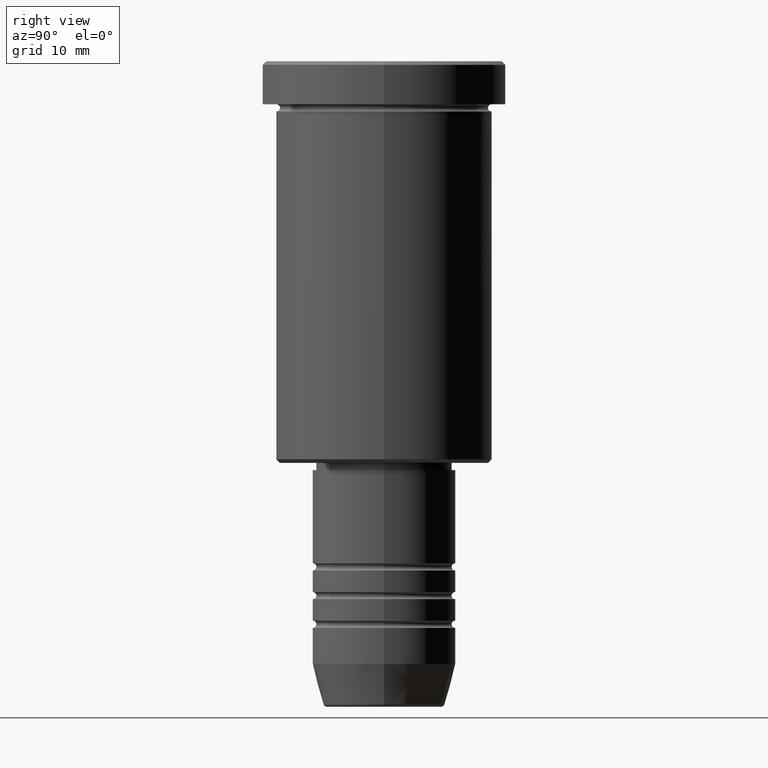
[diagram: clean part render]
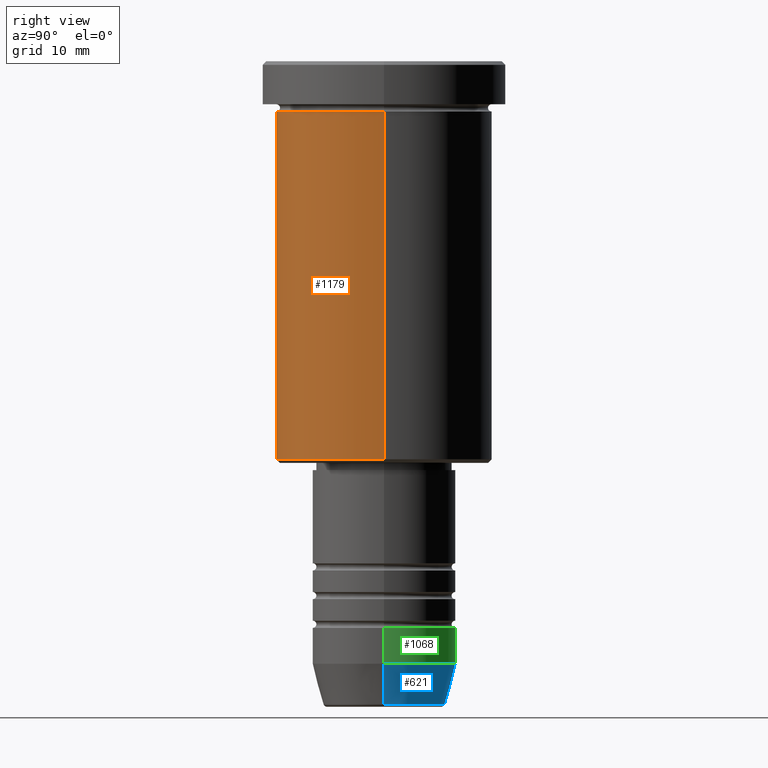
[diagram: same view with three faces highlighted in distinct colors, each labeled with its STEP entity id]
A machine part, right view with three faces highlighted in distinct colors.
Their STEP definitions:

[orange] entity #1179 — the highlighted cylindrical surface (partial cylindrical patch) has radius 15 mm, axis along (-0, -0, 1).
#30 = CYLINDRICAL_SURFACE ( 'NONE', #185, 15.00000000000000000 ) ;
#42 = DIRECTION ( 'NONE',  ( -0.000000000000000000, -0.000000000000000000, 1.000000000000000000 ) ) ;
#54 = ORIENTED_EDGE ( 'NONE', *, *, #250, .F. ) ;
#131 = FACE_OUTER_BOUND ( 'NONE', #576, .T. ) ;
#179 = DIRECTION ( 'NONE',  ( -0.000000000000000000, -0.000000000000000000, 1.000000000000000000 ) ) ;
#180 = EDGE_CURVE ( 'NONE', #697, #325, #645, .T. ) ;
#185 = AXIS2_PLACEMENT_3D ( 'NONE', #405, #315, #687 ) ;
#204 = DIRECTION ( 'NONE',  ( 1.000000000000000000, 0.000000000000000000, 0.000000000000000000 ) ) ;
#250 = EDGE_CURVE ( 'NONE', #1119, #457, #881, .T. ) ;
#255 = DIRECTION ( 'NONE',  ( -0.000000000000000000, -0.000000000000000000, 1.000000000000000000 ) ) ;
#283 = AXIS2_PLACEMENT_3D ( 'NONE', #304, #1022, #204 ) ;
#304 = CARTESIAN_POINT ( 'NONE',  ( 0.000000000000000000, 0.000000000000000000, -6.999999999999995559 ) ) ;
#315 = DIRECTION ( 'NONE',  ( -0.000000000000000000, -0.000000000000000000, 1.000000000000000000 ) ) ;
#319 = CIRCLE ( 'NONE', #977, 15.00000000000000000 ) ;
#325 = VERTEX_POINT ( 'NONE', #1155 ) ;
#327 = CARTESIAN_POINT ( 'NONE',  ( -15.00000000000000000, 1.836970198721029589E-15, 0.000000000000000000 ) ) ;
#330 = CARTESIAN_POINT ( 'NONE',  ( 0.000000000000000000, 0.000000000000000000, -55.49999999999997158 ) ) ;
#337 = EDGE_CURVE ( 'NONE', #1119, #697, #319, .T. ) ;
#382 = CIRCLE ( 'NONE', #283, 15.00000000000000000 ) ;
#405 = CARTESIAN_POINT ( 'NONE',  ( 0.000000000000000000, 0.000000000000000000, 0.000000000000000000 ) ) ;
#447 = CARTESIAN_POINT ( 'NONE',  ( 15.00000000000000000, 0.000000000000000000, 0.000000000000000000 ) ) ;
#454 = ORIENTED_EDGE ( 'NONE', *, *, #603, .F. ) ;
#457 = VERTEX_POINT ( 'NONE', #835 ) ;
#576 = EDGE_LOOP ( 'NONE', ( #54, #973, #918, #454 ) ) ;
#603 = EDGE_CURVE ( 'NONE', #457, #325, #382, .T. ) ;
#645 = LINE ( 'NONE', #447, #750 ) ;
#687 = DIRECTION ( 'NONE',  ( 1.000000000000000000, 0.000000000000000000, 0.000000000000000000 ) ) ;
#697 = VERTEX_POINT ( 'NONE', #875 ) ;
#750 = VECTOR ( 'NONE', #179, 1000.000000000000000 ) ;
#792 = CARTESIAN_POINT ( 'NONE',  ( -15.00000000000000000, 1.836970198721029589E-15, -55.49999999999997158 ) ) ;
#835 = CARTESIAN_POINT ( 'NONE',  ( -15.00000000000000000, 1.836970198721029589E-15, -6.999999999999995559 ) ) ;
#875 = CARTESIAN_POINT ( 'NONE',  ( 15.00000000000000000, 0.000000000000000000, -55.49999999999997158 ) ) ;
#878 = DIRECTION ( 'NONE',  ( -1.000000000000000000, 0.000000000000000000, 0.000000000000000000 ) ) ;
#881 = LINE ( 'NONE', #327, #925 ) ;
#918 = ORIENTED_EDGE ( 'NONE', *, *, #180, .T. ) ;
#925 = VECTOR ( 'NONE', #42, 1000.000000000000000 ) ;
#973 = ORIENTED_EDGE ( 'NONE', *, *, #337, .T. ) ;
#977 = AXIS2_PLACEMENT_3D ( 'NONE', #330, #255, #878 ) ;
#1022 = DIRECTION ( 'NONE',  ( -0.000000000000000000, -0.000000000000000000, 1.000000000000000000 ) ) ;
#1119 = VERTEX_POINT ( 'NONE', #792 ) ;
#1155 = CARTESIAN_POINT ( 'NONE',  ( 15.00000000000000000, 0.000000000000000000, -6.999999999999995559 ) ) ;
#1179 = ADVANCED_FACE ( 'NONE', ( #131 ), #30, .T. ) ;

[blue] entity #621 — the highlighted conical surface has half-angle 15 deg.
#14 = EDGE_CURVE ( 'NONE', #352, #1166, #414, .T. ) ;
#17 = CARTESIAN_POINT ( 'NONE',  ( 0.000000000000000000, 0.000000000000000000, -83.99999999999998579 ) ) ;
#21 = DIRECTION ( 'NONE',  ( -0.000000000000000000, -0.000000000000000000, 1.000000000000000000 ) ) ;
#37 = EDGE_LOOP ( 'NONE', ( #803, #57, #1086, #268 ) ) ;
#57 = ORIENTED_EDGE ( 'NONE', *, *, #829, .T. ) ;
#68 = CIRCLE ( 'NONE', #222, 8.491604264568312743 ) ;
#161 = CARTESIAN_POINT ( 'NONE',  ( -8.491604264568312743, 1.132284198685156781E-15, -89.62940952255125637 ) ) ;
#196 = EDGE_CURVE ( 'NONE', #240, #352, #432, .T. ) ;
#211 = DIRECTION ( 'NONE',  ( -0.000000000000000000, -0.000000000000000000, 1.000000000000000000 ) ) ;
#222 = AXIS2_PLACEMENT_3D ( 'NONE', #320, #235, #970 ) ;
#230 = CARTESIAN_POINT ( 'NONE',  ( 8.491604264568312743, 0.000000000000000000, -89.62940952255125637 ) ) ;
#233 = EDGE_CURVE ( 'NONE', #240, #820, #68, .T. ) ;
#235 = DIRECTION ( 'NONE',  ( -0.000000000000000000, -0.000000000000000000, 1.000000000000000000 ) ) ;
#240 = VERTEX_POINT ( 'NONE', #230 ) ;
#268 = ORIENTED_EDGE ( 'NONE', *, *, #196, .F. ) ;
#320 = CARTESIAN_POINT ( 'NONE',  ( 0.000000000000000000, 0.000000000000000000, -89.62940952255125637 ) ) ;
#352 = VERTEX_POINT ( 'NONE', #429 ) ;
#360 = DIRECTION ( 'NONE',  ( 0.2588190451025214056, 0.000000000000000000, 0.9659258262890680902 ) ) ;
#379 = VECTOR ( 'NONE', #360, 1000.000000000000000 ) ;
#399 = DIRECTION ( 'NONE',  ( 1.000000000000000000, 0.000000000000000000, 0.000000000000000000 ) ) ;
#414 = CIRCLE ( 'NONE', #572, 10.00000000000000178 ) ;
#429 = CARTESIAN_POINT ( 'NONE',  ( 10.00000000000000178, 0.000000000000000000, -83.99999999999998579 ) ) ;
#432 = LINE ( 'NONE', #730, #379 ) ;
#444 = LINE ( 'NONE', #832, #675 ) ;
#490 = DIRECTION ( 'NONE',  ( 1.000000000000000000, 0.000000000000000000, 0.000000000000000000 ) ) ;
#503 = CARTESIAN_POINT ( 'NONE',  ( -10.00000000000000178, 1.224646799147353454E-15, -83.99999999999998579 ) ) ;
#572 = AXIS2_PLACEMENT_3D ( 'NONE', #583, #211, #399 ) ;
#575 = AXIS2_PLACEMENT_3D ( 'NONE', #17, #21, #490 ) ;
#583 = CARTESIAN_POINT ( 'NONE',  ( 0.000000000000000000, 0.000000000000000000, -83.99999999999998579 ) ) ;
#587 = FACE_OUTER_BOUND ( 'NONE', #37, .T. ) ;
#621 = ADVANCED_FACE ( 'NONE', ( #587 ), #926, .T. ) ;
#675 = VECTOR ( 'NONE', #1065, 1000.000000000000000 ) ;
#730 = CARTESIAN_POINT ( 'NONE',  ( 10.00000000000000178, 0.000000000000000000, -83.99999999999998579 ) ) ;
#803 = ORIENTED_EDGE ( 'NONE', *, *, #233, .T. ) ;
#820 = VERTEX_POINT ( 'NONE', #161 ) ;
#829 = EDGE_CURVE ( 'NONE', #820, #1166, #444, .T. ) ;
#832 = CARTESIAN_POINT ( 'NONE',  ( -10.00000000000000178, 1.224646799147353454E-15, -83.99999999999998579 ) ) ;
#926 = CONICAL_SURFACE ( 'NONE', #575, 10.00000000000000178, 0.2617993877991501295 ) ;
#970 = DIRECTION ( 'NONE',  ( 1.000000000000000000, 0.000000000000000000, 0.000000000000000000 ) ) ;
#1065 = DIRECTION ( 'NONE',  ( -0.2588190451025214056, 3.169619151431772953E-17, 0.9659258262890680902 ) ) ;
#1086 = ORIENTED_EDGE ( 'NONE', *, *, #14, .F. ) ;
#1166 = VERTEX_POINT ( 'NONE', #503 ) ;

[green] entity #1068 — the highlighted cylindrical surface (partial cylindrical patch) has radius 10 mm, axis along (-0, -0, 1).
#14 = EDGE_CURVE ( 'NONE', #352, #1166, #414, .T. ) ;
#158 = ORIENTED_EDGE ( 'NONE', *, *, #653, .F. ) ;
#183 = CARTESIAN_POINT ( 'NONE',  ( -10.00000000000000000, 1.224646799147353256E-15, -78.99999999999998579 ) ) ;
#205 = DIRECTION ( 'NONE',  ( -0.000000000000000000, -0.000000000000000000, 1.000000000000000000 ) ) ;
#211 = DIRECTION ( 'NONE',  ( -0.000000000000000000, -0.000000000000000000, 1.000000000000000000 ) ) ;
#273 = CARTESIAN_POINT ( 'NONE',  ( 10.00000000000000000, 0.000000000000000000, -78.99999999999998579 ) ) ;
#295 = ORIENTED_EDGE ( 'NONE', *, *, #1156, .F. ) ;
#298 = CARTESIAN_POINT ( 'NONE',  ( 0.000000000000000000, 0.000000000000000000, 0.000000000000000000 ) ) ;
#307 = DIRECTION ( 'NONE',  ( -0.000000000000000000, -0.000000000000000000, 1.000000000000000000 ) ) ;
#318 = DIRECTION ( 'NONE',  ( -0.000000000000000000, -0.000000000000000000, 1.000000000000000000 ) ) ;
#352 = VERTEX_POINT ( 'NONE', #429 ) ;
#364 = AXIS2_PLACEMENT_3D ( 'NONE', #1116, #307, #679 ) ;
#378 = AXIS2_PLACEMENT_3D ( 'NONE', #298, #205, #674 ) ;
#399 = DIRECTION ( 'NONE',  ( 1.000000000000000000, 0.000000000000000000, 0.000000000000000000 ) ) ;
#401 = VERTEX_POINT ( 'NONE', #183 ) ;
#414 = CIRCLE ( 'NONE', #572, 10.00000000000000178 ) ;
#429 = CARTESIAN_POINT ( 'NONE',  ( 10.00000000000000178, 0.000000000000000000, -83.99999999999998579 ) ) ;
#503 = CARTESIAN_POINT ( 'NONE',  ( -10.00000000000000178, 1.224646799147353454E-15, -83.99999999999998579 ) ) ;
#524 = CARTESIAN_POINT ( 'NONE',  ( -10.00000000000000178, 1.224646799147353454E-15, 0.000000000000000000 ) ) ;
#563 = LINE ( 'NONE', #524, #1020 ) ;
#572 = AXIS2_PLACEMENT_3D ( 'NONE', #583, #211, #399 ) ;
#583 = CARTESIAN_POINT ( 'NONE',  ( 0.000000000000000000, 0.000000000000000000, -83.99999999999998579 ) ) ;
#589 = LINE ( 'NONE', #773, #1054 ) ;
#595 = ORIENTED_EDGE ( 'NONE', *, *, #14, .T. ) ;
#653 = EDGE_CURVE ( 'NONE', #836, #401, #713, .T. ) ;
#663 = FACE_OUTER_BOUND ( 'NONE', #802, .T. ) ;
#666 = EDGE_CURVE ( 'NONE', #1166, #401, #563, .T. ) ;
#674 = DIRECTION ( 'NONE',  ( 1.000000000000000000, 0.000000000000000000, 0.000000000000000000 ) ) ;
#679 = DIRECTION ( 'NONE',  ( 1.000000000000000000, 0.000000000000000000, 0.000000000000000000 ) ) ;
#682 = DIRECTION ( 'NONE',  ( -0.000000000000000000, -0.000000000000000000, 1.000000000000000000 ) ) ;
#713 = CIRCLE ( 'NONE', #364, 10.00000000000000000 ) ;
#773 = CARTESIAN_POINT ( 'NONE',  ( 10.00000000000000178, 0.000000000000000000, 0.000000000000000000 ) ) ;
#802 = EDGE_LOOP ( 'NONE', ( #595, #867, #158, #295 ) ) ;
#836 = VERTEX_POINT ( 'NONE', #273 ) ;
#867 = ORIENTED_EDGE ( 'NONE', *, *, #666, .T. ) ;
#1020 = VECTOR ( 'NONE', #318, 1000.000000000000000 ) ;
#1054 = VECTOR ( 'NONE', #682, 1000.000000000000000 ) ;
#1068 = ADVANCED_FACE ( 'NONE', ( #663 ), #1106, .T. ) ;
#1106 = CYLINDRICAL_SURFACE ( 'NONE', #378, 10.00000000000000178 ) ;
#1116 = CARTESIAN_POINT ( 'NONE',  ( 0.000000000000000000, 0.000000000000000000, -78.99999999999998579 ) ) ;
#1156 = EDGE_CURVE ( 'NONE', #352, #836, #589, .T. ) ;
#1166 = VERTEX_POINT ( 'NONE', #503 ) ;